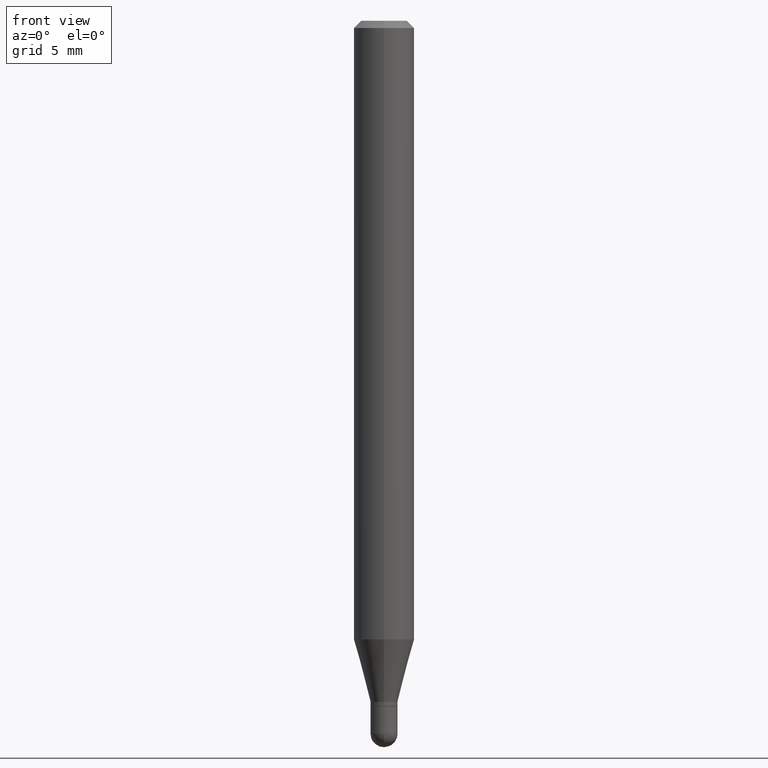
[diagram: clean part render]
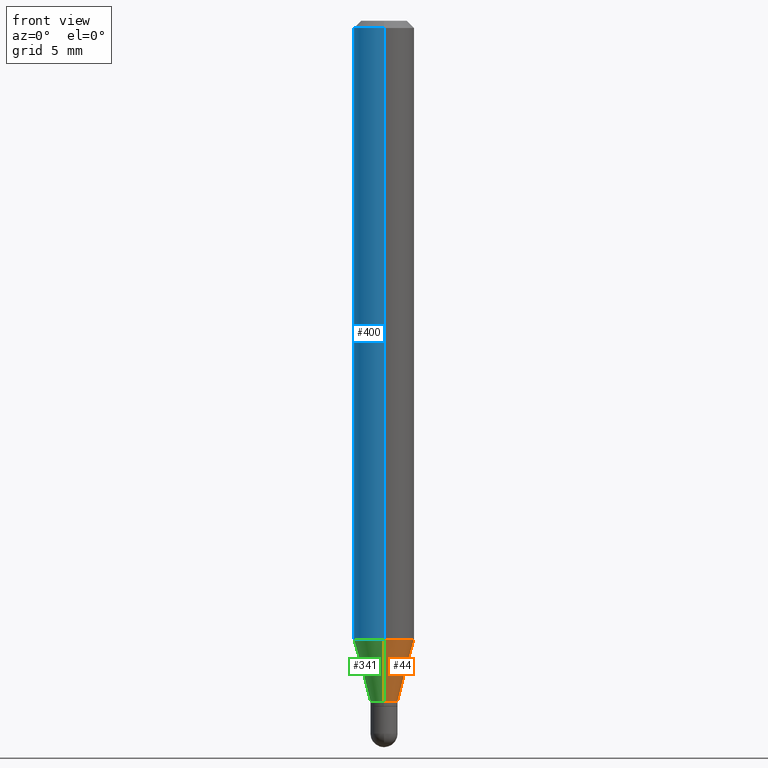
[diagram: same view with three faces highlighted in distinct colors, each labeled with its STEP entity id]
A machine part, front view with three faces highlighted in distinct colors.
Their STEP definitions:

[orange] entity #44 — the highlighted conical surface has half-angle 15 deg.
#30 = DIRECTION ( 'NONE',  ( -1.807323732225330139E-15, -0.2588190451025181860, 0.9659258262890689783 ) ) ;
#36 = VERTEX_POINT ( 'NONE', #89 ) ;
#43 = ORIENTED_EDGE ( 'NONE', *, *, #70, .T. ) ;
#44 = ADVANCED_FACE ( 'NONE', ( #323 ), #57, .T. ) ;
#46 = VERTEX_POINT ( 'NONE', #51 ) ;
#49 = AXIS2_PLACEMENT_3D ( 'NONE', #95, #241, #318 ) ;
#51 = CARTESIAN_POINT ( 'NONE',  ( 4.440892098500935790E-16, 0.06249999999999551747, -1.277244247138874522 ) ) ;
#55 = LINE ( 'NONE', #247, #310 ) ;
#56 = DIRECTION ( 'NONE',  ( -2.445471327938569020E-29, 3.491477727548701218E-15, 1.000000000000000000 ) ) ;
#57 = CONICAL_SURFACE ( 'NONE', #441, 0.02799999999999992426, 0.2617993877991502960 ) ;
#70 = EDGE_CURVE ( 'NONE', #184, #385, #195, .T. ) ;
#89 = CARTESIAN_POINT ( 'NONE',  ( -4.364351673553605587E-16, -0.06250000000000446865, -1.277244247138873856 ) ) ;
#93 = DIRECTION ( 'NONE',  ( -6.982962677686266711E-15, -1.000000000000000000, 0.000000000000000000 ) ) ;
#95 = CARTESIAN_POINT ( 'NONE',  ( 3.438332687081628621E-29, -4.909017684933475227E-15, -1.406000000000000139 ) ) ;
#103 = EDGE_CURVE ( 'NONE', #385, #46, #55, .T. ) ;
#111 = CARTESIAN_POINT ( 'NONE',  ( -1.955229549751805184E-16, -0.02800000000000483352, -1.406000000000000139 ) ) ;
#168 = CARTESIAN_POINT ( 'NONE',  ( -1.955229549751805184E-16, -0.02800000000000483352, -1.406000000000000139 ) ) ;
#184 = VERTEX_POINT ( 'NONE', #168 ) ;
#194 = ORIENTED_EDGE ( 'NONE', *, *, #103, .T. ) ;
#195 = CIRCLE ( 'NONE', #49, 0.02799999999999992426 ) ;
#233 = CIRCLE ( 'NONE', #495, 0.06250000000000000000 ) ;
#234 = EDGE_LOOP ( 'NONE', ( #43, #194, #507, #307 ) ) ;
#241 = DIRECTION ( 'NONE',  ( -2.445471327938569020E-29, 3.491477727548701218E-15, 1.000000000000000000 ) ) ;
#247 = CARTESIAN_POINT ( 'NONE',  ( 1.989519660128618786E-16, 0.02799999999999501846, -1.406000000000000139 ) ) ;
#254 = LINE ( 'NONE', #111, #258 ) ;
#258 = VECTOR ( 'NONE', #30, 39.37007874015748143 ) ;
#307 = ORIENTED_EDGE ( 'NONE', *, *, #333, .F. ) ;
#310 = VECTOR ( 'NONE', #369, 39.37007874015748143 ) ;
#318 = DIRECTION ( 'NONE',  ( -6.982962677686266711E-15, -1.000000000000000000, 0.000000000000000000 ) ) ;
#323 = FACE_OUTER_BOUND ( 'NONE', #234, .T. ) ;
#333 = EDGE_CURVE ( 'NONE', #184, #36, #254, .T. ) ;
#369 = DIRECTION ( 'NONE',  ( 1.839019923739600315E-15, 0.2588190451025249583, 0.9659258262890670910 ) ) ;
#385 = VERTEX_POINT ( 'NONE', #425 ) ;
#399 = CARTESIAN_POINT ( 'NONE',  ( 3.438332687081628621E-29, -4.909017684933475227E-15, -1.406000000000000139 ) ) ;
#405 = CARTESIAN_POINT ( 'NONE',  ( 3.123464185152600685E-29, -4.459469841525088117E-15, -1.277244247138874078 ) ) ;
#408 = DIRECTION ( 'NONE',  ( -6.982962677686265922E-15, -1.000000000000000000, 4.370956789862821150E-15 ) ) ;
#425 = CARTESIAN_POINT ( 'NONE',  ( 3.215205879314779630E-16, 0.02799999999999501846, -1.406000000000000139 ) ) ;
#441 = AXIS2_PLACEMENT_3D ( 'NONE', #399, #483, #93 ) ;
#483 = DIRECTION ( 'NONE',  ( -2.445471327938569020E-29, 3.491477727548701218E-15, 1.000000000000000000 ) ) ;
#495 = AXIS2_PLACEMENT_3D ( 'NONE', #405, #56, #408 ) ;
#507 = ORIENTED_EDGE ( 'NONE', *, *, #512, .F. ) ;
#512 = EDGE_CURVE ( 'NONE', #36, #46, #233, .T. ) ;

[blue] entity #400 — the highlighted cylindrical surface (edge-blend (fillet) strip) has radius 1.5875 mm, axis along (-0, 0, 1).
#4 = ORIENTED_EDGE ( 'NONE', *, *, #320, .F. ) ;
#17 = VECTOR ( 'NONE', #284, 39.37007874015748143 ) ;
#36 = VERTEX_POINT ( 'NONE', #89 ) ;
#46 = VERTEX_POINT ( 'NONE', #51 ) ;
#48 = CARTESIAN_POINT ( 'NONE',  ( -4.364351673553916201E-16, -0.06250000000000000000, 2.182173579717938261E-16 ) ) ;
#50 = AXIS2_PLACEMENT_3D ( 'NONE', #167, #128, #131 ) ;
#51 = CARTESIAN_POINT ( 'NONE',  ( 4.440892098500935790E-16, 0.06249999999999551747, -1.277244247138874522 ) ) ;
#52 = CARTESIAN_POINT ( 'NONE',  ( -4.364351673553912750E-16, -0.06250000000000005551, -0.01499999999999979128 ) ) ;
#67 = LINE ( 'NONE', #182, #378 ) ;
#76 = CARTESIAN_POINT ( 'NONE',  ( 3.123464185152600685E-29, -4.459469841525088117E-15, -1.277244247138874078 ) ) ;
#84 = ORIENTED_EDGE ( 'NONE', *, *, #376, .T. ) ;
#86 = ORIENTED_EDGE ( 'NONE', *, *, #469, .T. ) ;
#88 = DIRECTION ( 'NONE',  ( -2.445471327938569020E-29, 3.491477727548701218E-15, 1.000000000000000000 ) ) ;
#89 = CARTESIAN_POINT ( 'NONE',  ( -4.364351673553605587E-16, -0.06250000000000446865, -1.277244247138873856 ) ) ;
#92 = AXIS2_PLACEMENT_3D ( 'NONE', #76, #155, #348 ) ;
#106 = VERTEX_POINT ( 'NONE', #407 ) ;
#124 = EDGE_LOOP ( 'NONE', ( #4, #84, #86, #161 ) ) ;
#128 = DIRECTION ( 'NONE',  ( -2.445471327938569020E-29, 3.491477727548701218E-15, 1.000000000000000000 ) ) ;
#131 = DIRECTION ( 'NONE',  ( -6.982962677686265922E-15, -1.000000000000000000, 3.483106191921935554E-15 ) ) ;
#155 = DIRECTION ( 'NONE',  ( -2.445471327938569020E-29, 3.491477727548701218E-15, 1.000000000000000000 ) ) ;
#161 = ORIENTED_EDGE ( 'NONE', *, *, #456, .F. ) ;
#167 = CARTESIAN_POINT ( 'NONE',  ( 3.668206991907855387E-31, -5.237216591323055179E-17, -0.01500000000000000812 ) ) ;
#182 = CARTESIAN_POINT ( 'NONE',  ( 4.440892098500625669E-16, 0.06250000000000000000, -2.182173579717938261E-16 ) ) ;
#186 = DIRECTION ( 'NONE',  ( -2.445471327938569020E-29, 3.491477727548701218E-15, 1.000000000000000000 ) ) ;
#210 = DIRECTION ( 'NONE',  ( -6.982962677686265922E-15, -1.000000000000000000, 3.491477727548701218E-15 ) ) ;
#267 = CIRCLE ( 'NONE', #50, 0.06250000000000000000 ) ;
#284 = DIRECTION ( 'NONE',  ( -2.445471327938569020E-29, 3.491477727548701218E-15, 1.000000000000000000 ) ) ;
#288 = CYLINDRICAL_SURFACE ( 'NONE', #391, 0.06250000000000000000 ) ;
#320 = EDGE_CURVE ( 'NONE', #46, #106, #67, .T. ) ;
#348 = DIRECTION ( 'NONE',  ( -6.982962677686265922E-15, -1.000000000000000000, 4.370956789862821150E-15 ) ) ;
#376 = EDGE_CURVE ( 'NONE', #46, #36, #428, .T. ) ;
#378 = VECTOR ( 'NONE', #186, 39.37007874015748143 ) ;
#391 = AXIS2_PLACEMENT_3D ( 'NONE', #437, #88, #210 ) ;
#400 = ADVANCED_FACE ( 'NONE', ( #445 ), #288, .T. ) ;
#401 = LINE ( 'NONE', #48, #17 ) ;
#407 = CARTESIAN_POINT ( 'NONE',  ( 4.440892098500940720E-16, 0.06249999999999995143, -0.01500000000000022669 ) ) ;
#421 = VERTEX_POINT ( 'NONE', #52 ) ;
#428 = CIRCLE ( 'NONE', #92, 0.06250000000000000000 ) ;
#437 = CARTESIAN_POINT ( 'NONE',  ( 0.000000000000000000, 0.000000000000000000, 0.000000000000000000 ) ) ;
#445 = FACE_OUTER_BOUND ( 'NONE', #124, .T. ) ;
#456 = EDGE_CURVE ( 'NONE', #106, #421, #267, .T. ) ;
#469 = EDGE_CURVE ( 'NONE', #36, #421, #401, .T. ) ;

[green] entity #341 — the highlighted conical surface has half-angle 15 deg.
#30 = DIRECTION ( 'NONE',  ( -1.807323732225330139E-15, -0.2588190451025181860, 0.9659258262890689783 ) ) ;
#36 = VERTEX_POINT ( 'NONE', #89 ) ;
#46 = VERTEX_POINT ( 'NONE', #51 ) ;
#51 = CARTESIAN_POINT ( 'NONE',  ( 4.440892098500935790E-16, 0.06249999999999551747, -1.277244247138874522 ) ) ;
#55 = LINE ( 'NONE', #247, #310 ) ;
#65 = ORIENTED_EDGE ( 'NONE', *, *, #103, .F. ) ;
#76 = CARTESIAN_POINT ( 'NONE',  ( 3.123464185152600685E-29, -4.459469841525088117E-15, -1.277244247138874078 ) ) ;
#89 = CARTESIAN_POINT ( 'NONE',  ( -4.364351673553605587E-16, -0.06250000000000446865, -1.277244247138873856 ) ) ;
#91 = AXIS2_PLACEMENT_3D ( 'NONE', #332, #491, #175 ) ;
#92 = AXIS2_PLACEMENT_3D ( 'NONE', #76, #155, #348 ) ;
#103 = EDGE_CURVE ( 'NONE', #385, #46, #55, .T. ) ;
#110 = CONICAL_SURFACE ( 'NONE', #338, 0.02799999999999992426, 0.2617993877991502960 ) ;
#111 = CARTESIAN_POINT ( 'NONE',  ( -1.955229549751805184E-16, -0.02800000000000483352, -1.406000000000000139 ) ) ;
#144 = DIRECTION ( 'NONE',  ( -2.445471327938569020E-29, 3.491477727548701218E-15, 1.000000000000000000 ) ) ;
#155 = DIRECTION ( 'NONE',  ( -2.445471327938569020E-29, 3.491477727548701218E-15, 1.000000000000000000 ) ) ;
#158 = ORIENTED_EDGE ( 'NONE', *, *, #376, .F. ) ;
#168 = CARTESIAN_POINT ( 'NONE',  ( -1.955229549751805184E-16, -0.02800000000000483352, -1.406000000000000139 ) ) ;
#175 = DIRECTION ( 'NONE',  ( -6.982962677686266711E-15, -1.000000000000000000, 0.000000000000000000 ) ) ;
#184 = VERTEX_POINT ( 'NONE', #168 ) ;
#217 = EDGE_CURVE ( 'NONE', #385, #184, #325, .T. ) ;
#223 = CARTESIAN_POINT ( 'NONE',  ( 3.438332687081628621E-29, -4.909017684933475227E-15, -1.406000000000000139 ) ) ;
#232 = EDGE_LOOP ( 'NONE', ( #65, #261, #392, #158 ) ) ;
#247 = CARTESIAN_POINT ( 'NONE',  ( 1.989519660128618786E-16, 0.02799999999999501846, -1.406000000000000139 ) ) ;
#254 = LINE ( 'NONE', #111, #258 ) ;
#258 = VECTOR ( 'NONE', #30, 39.37007874015748143 ) ;
#261 = ORIENTED_EDGE ( 'NONE', *, *, #217, .T. ) ;
#302 = FACE_OUTER_BOUND ( 'NONE', #232, .T. ) ;
#310 = VECTOR ( 'NONE', #369, 39.37007874015748143 ) ;
#325 = CIRCLE ( 'NONE', #91, 0.02799999999999992426 ) ;
#332 = CARTESIAN_POINT ( 'NONE',  ( 3.438332687081628621E-29, -4.909017684933475227E-15, -1.406000000000000139 ) ) ;
#333 = EDGE_CURVE ( 'NONE', #184, #36, #254, .T. ) ;
#338 = AXIS2_PLACEMENT_3D ( 'NONE', #223, #144, #419 ) ;
#341 = ADVANCED_FACE ( 'NONE', ( #302 ), #110, .T. ) ;
#348 = DIRECTION ( 'NONE',  ( -6.982962677686265922E-15, -1.000000000000000000, 4.370956789862821150E-15 ) ) ;
#369 = DIRECTION ( 'NONE',  ( 1.839019923739600315E-15, 0.2588190451025249583, 0.9659258262890670910 ) ) ;
#376 = EDGE_CURVE ( 'NONE', #46, #36, #428, .T. ) ;
#385 = VERTEX_POINT ( 'NONE', #425 ) ;
#392 = ORIENTED_EDGE ( 'NONE', *, *, #333, .T. ) ;
#419 = DIRECTION ( 'NONE',  ( -6.982962677686266711E-15, -1.000000000000000000, 0.000000000000000000 ) ) ;
#425 = CARTESIAN_POINT ( 'NONE',  ( 3.215205879314779630E-16, 0.02799999999999501846, -1.406000000000000139 ) ) ;
#428 = CIRCLE ( 'NONE', #92, 0.06250000000000000000 ) ;
#491 = DIRECTION ( 'NONE',  ( -2.445471327938569020E-29, 3.491477727548701218E-15, 1.000000000000000000 ) ) ;